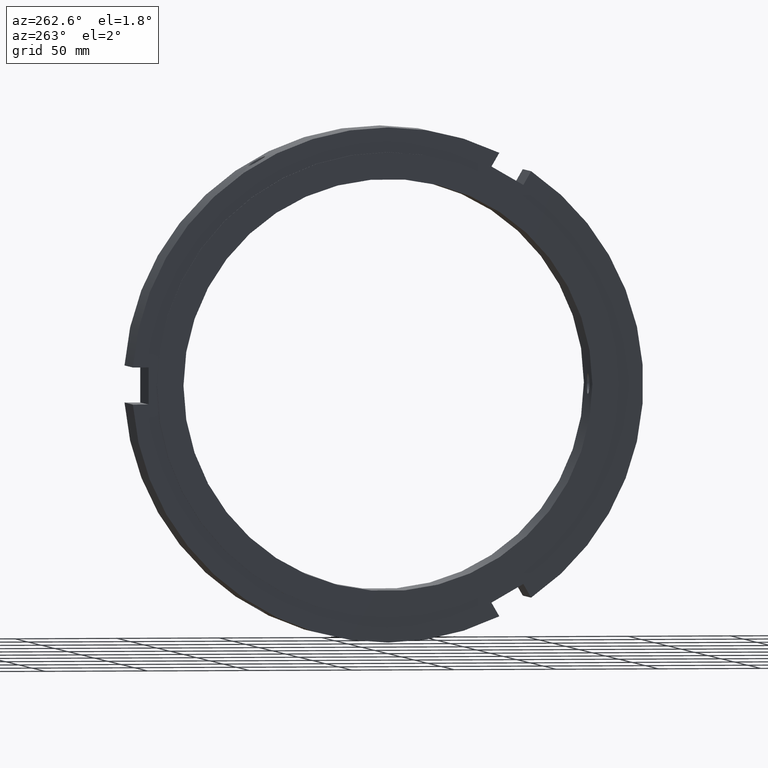
[diagram: clean part render]
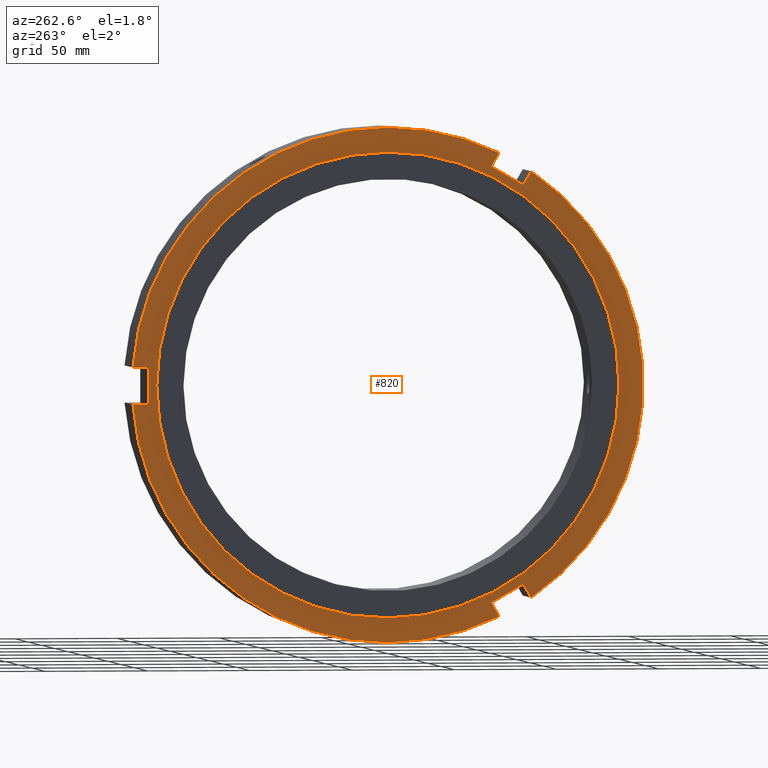
[diagram: same view with one face highlighted and labeled with its STEP entity id]
A machine part, auxiliary view. The second image highlights one B-rep face of the part: STEP entity #820.
In plain terms, the highlighted planar face has unit normal (-1, 0, 0).
Its self-contained STEP definition (entity closure, byte-faithful):
#337=CARTESIAN_POINT('',(0.499999999999963,-66.294228634060005,-96.82497224277931));
#338=VERTEX_POINT('',#337);
#339=CARTESIAN_POINT('',(0.499999999999963,-70.132018136094786,-103.47221864905804));
#340=VERTEX_POINT('',#339);
#341=CARTESIAN_POINT('',(0.499999999999965,-66.294228634060005,-96.824972242779324));
#342=DIRECTION('',(0.0,-0.500000000000002,-0.866025403784438));
#343=VECTOR('',#342,7.675579004069564);
#344=LINE('',#341,#343);
#345=EDGE_CURVE('',#338,#340,#344,.T.);
#377=CARTESIAN_POINT('',(0.499999999999963,-50.705771365940109,-105.82497224277932));
#378=VERTEX_POINT('',#377);
#379=CARTESIAN_POINT('',(0.499999999999965,-50.705771365940123,-105.82497224277934));
#380=DIRECTION('',(0.0,-0.866025403784439,0.5));
#381=VECTOR('',#380,18.000000000000018);
#382=LINE('',#379,#381);
#383=EDGE_CURVE('',#378,#338,#382,.T.);
#408=CARTESIAN_POINT('',(0.499999999999963,-54.54356086797489,-112.47221864905804));
#409=VERTEX_POINT('',#408);
#410=CARTESIAN_POINT('',(0.499999999999965,-54.543560867974918,-112.47221864905805));
#411=DIRECTION('',(0.0,0.5,0.866025403784439));
#412=VECTOR('',#411,7.675579004069557);
#413=LINE('',#410,#412);
#414=EDGE_CURVE('',#409,#378,#413,.T.);
#439=CARTESIAN_POINT('',(0.499999999999963,-50.705771365940045,105.82497224277935));
#440=VERTEX_POINT('',#439);
#441=CARTESIAN_POINT('',(0.499999999999963,-54.543560867974833,112.47221864905805));
#442=VERTEX_POINT('',#441);
#443=CARTESIAN_POINT('',(0.499999999999967,-50.705771365940066,105.82497224277935));
#444=DIRECTION('',(0.0,-0.499999999999999,0.866025403784439));
#445=VECTOR('',#444,7.675579004069586);
#446=LINE('',#443,#445);
#447=EDGE_CURVE('',#440,#442,#446,.T.);
#479=CARTESIAN_POINT('',(0.499999999999963,-66.294228634059948,96.824972242779353));
#480=VERTEX_POINT('',#479);
#481=CARTESIAN_POINT('',(0.499999999999967,-66.294228634059948,96.824972242779339));
#482=DIRECTION('',(0.0,0.866025403784439,0.499999999999999));
#483=VECTOR('',#482,17.999999999999993);
#484=LINE('',#481,#483);
#485=EDGE_CURVE('',#480,#440,#484,.T.);
#510=CARTESIAN_POINT('',(0.499999999999963,-70.132018136094729,103.47221864905805));
#511=VERTEX_POINT('',#510);
#512=CARTESIAN_POINT('',(0.499999999999967,-70.132018136094757,103.47221864905805));
#513=DIRECTION('',(0.0,0.5,-0.866025403784439));
#514=VECTOR('',#513,7.675579004069557);
#515=LINE('',#512,#514);
#516=EDGE_CURVE('',#511,#480,#515,.T.);
#615=CARTESIAN_POINT('',(0.499999999999963,124.67557900406959,9.000000000000016));
#616=VERTEX_POINT('',#615);
#623=CARTESIAN_POINT('',(0.499999999999963,0.0,0.0));
#624=DIRECTION('',(1.0,0.0,0.0));
#625=DIRECTION('',(0.0,1.0,0.0));
#626=AXIS2_PLACEMENT_3D('',#623,#624,#625);
#627=CIRCLE('',#626,125.0);
#628=EDGE_CURVE('',#616,#442,#627,.T.);
#642=CARTESIAN_POINT('',(0.499999999999963,124.67557900406959,-8.999999999999984));
#643=VERTEX_POINT('',#642);
#644=CARTESIAN_POINT('',(0.499999999999963,0.0,0.0));
#645=DIRECTION('',(1.0,0.0,0.0));
#646=DIRECTION('',(0.0,1.0,0.0));
#647=AXIS2_PLACEMENT_3D('',#644,#645,#646);
#648=CIRCLE('',#647,125.0);
#649=EDGE_CURVE('',#409,#643,#648,.T.);
#669=CARTESIAN_POINT('',(0.499999999999963,117.00000000000001,-8.999999999999988));
#670=VERTEX_POINT('',#669);
#671=CARTESIAN_POINT('',(0.499999999999965,117.0,-8.999999999999988));
#672=DIRECTION('',(0.0,1.0,0.0));
#673=VECTOR('',#672,7.67557900406959);
#674=LINE('',#671,#673);
#675=EDGE_CURVE('',#670,#643,#674,.T.);
#693=CARTESIAN_POINT('',(0.499999999999963,117.00000000000001,9.000000000000016));
#694=VERTEX_POINT('',#693);
#695=CARTESIAN_POINT('',(0.499999999999965,117.00000000000001,9.000000000000018));
#696=DIRECTION('',(0.0,0.0,-1.0));
#697=VECTOR('',#696,18.000000000000007);
#698=LINE('',#695,#697);
#699=EDGE_CURVE('',#694,#670,#698,.T.);
#717=CARTESIAN_POINT('',(0.499999999999965,124.67557900406959,9.000000000000016));
#718=DIRECTION('',(0.0,-1.0,0.0));
#719=VECTOR('',#718,7.67557900406959);
#720=LINE('',#717,#719);
#721=EDGE_CURVE('',#616,#694,#720,.T.);
#737=CARTESIAN_POINT('',(0.499999999999963,0.0,0.0));
#738=DIRECTION('',(1.0,0.0,0.0));
#739=DIRECTION('',(0.0,1.0,0.0));
#740=AXIS2_PLACEMENT_3D('',#737,#738,#739);
#741=CIRCLE('',#740,125.0);
#742=EDGE_CURVE('',#511,#340,#741,.T.);
#783=CARTESIAN_POINT('',(0.499999999999967,113.0,0.0));
#784=VERTEX_POINT('',#783);
#785=CARTESIAN_POINT('',(0.499999999999967,0.0,0.0));
#786=DIRECTION('',(1.0,0.0,0.0));
#787=DIRECTION('',(0.0,1.0,0.0));
#788=AXIS2_PLACEMENT_3D('',#785,#786,#787);
#789=CIRCLE('',#788,113.0);
#790=EDGE_CURVE('',#784,#784,#789,.T.);
#798=CARTESIAN_POINT('',(0.499999999999965,119.0,0.0));
#799=DIRECTION('',(-1.0,0.0,0.0));
#800=DIRECTION('',(0.0,0.0,1.0));
#801=AXIS2_PLACEMENT_3D('',#798,#799,#800);
#802=PLANE('',#801);
#803=ORIENTED_EDGE('',*,*,#345,.T.);
#804=ORIENTED_EDGE('',*,*,#742,.F.);
#805=ORIENTED_EDGE('',*,*,#516,.T.);
#806=ORIENTED_EDGE('',*,*,#485,.T.);
#807=ORIENTED_EDGE('',*,*,#447,.T.);
#808=ORIENTED_EDGE('',*,*,#628,.F.);
#809=ORIENTED_EDGE('',*,*,#721,.T.);
#810=ORIENTED_EDGE('',*,*,#699,.T.);
#811=ORIENTED_EDGE('',*,*,#675,.T.);
#812=ORIENTED_EDGE('',*,*,#649,.F.);
#813=ORIENTED_EDGE('',*,*,#414,.T.);
#814=ORIENTED_EDGE('',*,*,#383,.T.);
#815=EDGE_LOOP('',(#803,#804,#805,#806,#807,#808,#809,#810,#811,#812,#813,#814));
#816=FACE_OUTER_BOUND('',#815,.T.);
#817=ORIENTED_EDGE('',*,*,#790,.T.);
#818=EDGE_LOOP('',(#817));
#819=FACE_BOUND('',#818,.T.);
#820=ADVANCED_FACE('',(#816,#819),#802,.T.);